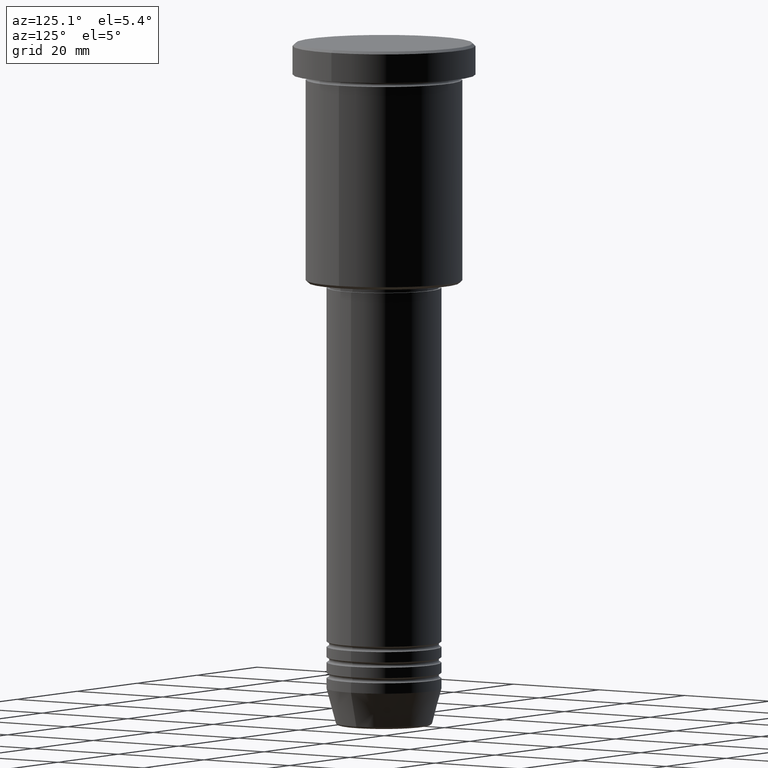
[diagram: clean part render]
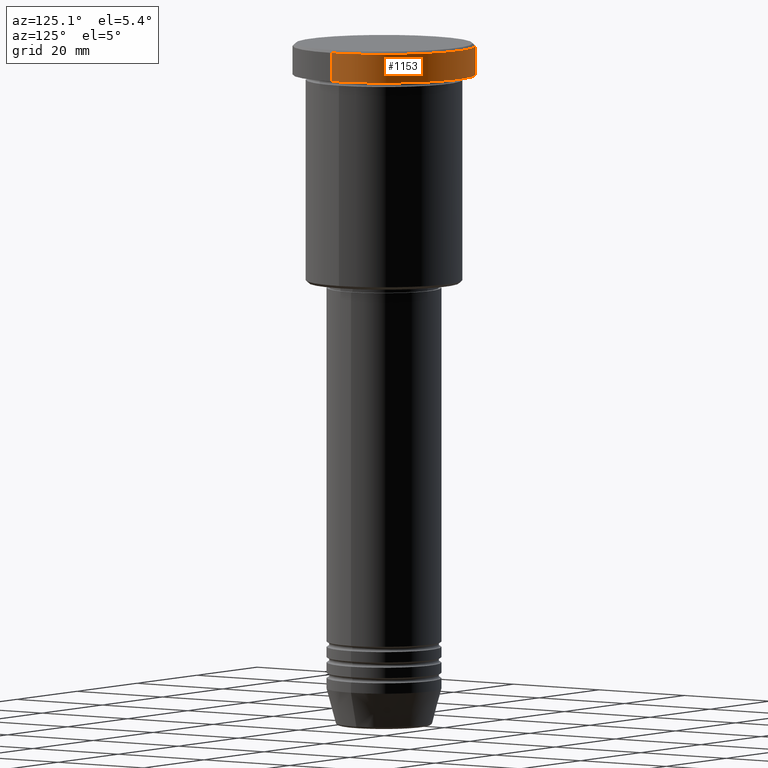
[diagram: same view with one face highlighted and labeled with its STEP entity id]
A machine part, auxiliary view. The second image highlights one B-rep face of the part: STEP entity #1153.
In plain terms, the highlighted cylindrical surface (partial cylindrical patch) has radius 17.5 mm, axis along (-0, -0, 1).
Its self-contained STEP definition (entity closure, byte-faithful):
#18 = CIRCLE ( 'NONE', #98, 17.50000000000000000 ) ;
#36 = CARTESIAN_POINT ( 'NONE',  ( 17.50000000000000000, 0.000000000000000000, -5.999999999999995559 ) ) ;
#51 = DIRECTION ( 'NONE',  ( -0.000000000000000000, -0.000000000000000000, 1.000000000000000000 ) ) ;
#53 = CARTESIAN_POINT ( 'NONE',  ( 0.000000000000000000, 0.000000000000000000, -0.5000000000000003331 ) ) ;
#57 = VERTEX_POINT ( 'NONE', #36 ) ;
#58 = DIRECTION ( 'NONE',  ( -0.000000000000000000, -0.000000000000000000, 1.000000000000000000 ) ) ;
#74 = EDGE_LOOP ( 'NONE', ( #662, #1016, #1061, #904 ) ) ;
#98 = AXIS2_PLACEMENT_3D ( 'NONE', #53, #709, #1053 ) ;
#148 = FACE_OUTER_BOUND ( 'NONE', #74, .T. ) ;
#199 = EDGE_CURVE ( 'NONE', #57, #324, #606, .T. ) ;
#224 = CYLINDRICAL_SURFACE ( 'NONE', #489, 17.50000000000000000 ) ;
#227 = DIRECTION ( 'NONE',  ( -0.000000000000000000, -0.000000000000000000, 1.000000000000000000 ) ) ;
#257 = CARTESIAN_POINT ( 'NONE',  ( -17.50000000000000000, 2.143131898507868248E-15, -0.5000000000000003331 ) ) ;
#276 = CARTESIAN_POINT ( 'NONE',  ( -17.50000000000000000, 2.143131898507868248E-15, -5.999999999999995559 ) ) ;
#323 = CARTESIAN_POINT ( 'NONE',  ( 17.50000000000000000, 0.000000000000000000, 0.000000000000000000 ) ) ;
#324 = VERTEX_POINT ( 'NONE', #276 ) ;
#426 = DIRECTION ( 'NONE',  ( 1.000000000000000000, 0.000000000000000000, 0.000000000000000000 ) ) ;
#435 = CARTESIAN_POINT ( 'NONE',  ( 17.50000000000000000, 0.000000000000000000, -0.5000000000000003331 ) ) ;
#455 = VERTEX_POINT ( 'NONE', #435 ) ;
#489 = AXIS2_PLACEMENT_3D ( 'NONE', #962, #51, #515 ) ;
#515 = DIRECTION ( 'NONE',  ( 1.000000000000000000, 0.000000000000000000, 0.000000000000000000 ) ) ;
#517 = CARTESIAN_POINT ( 'NONE',  ( 0.000000000000000000, 0.000000000000000000, -5.999999999999995559 ) ) ;
#606 = CIRCLE ( 'NONE', #1141, 17.50000000000000000 ) ;
#611 = LINE ( 'NONE', #323, #1121 ) ;
#662 = ORIENTED_EDGE ( 'NONE', *, *, #199, .T. ) ;
#691 = EDGE_CURVE ( 'NONE', #57, #455, #611, .T. ) ;
#709 = DIRECTION ( 'NONE',  ( 0.000000000000000000, 0.000000000000000000, -1.000000000000000000 ) ) ;
#714 = EDGE_CURVE ( 'NONE', #324, #778, #788, .T. ) ;
#768 = EDGE_CURVE ( 'NONE', #778, #455, #18, .T. ) ;
#778 = VERTEX_POINT ( 'NONE', #257 ) ;
#779 = CARTESIAN_POINT ( 'NONE',  ( -17.50000000000000000, 2.143131898507868248E-15, 0.000000000000000000 ) ) ;
#788 = LINE ( 'NONE', #779, #868 ) ;
#868 = VECTOR ( 'NONE', #227, 1000.000000000000000 ) ;
#904 = ORIENTED_EDGE ( 'NONE', *, *, #691, .F. ) ;
#962 = CARTESIAN_POINT ( 'NONE',  ( 0.000000000000000000, 0.000000000000000000, 0.000000000000000000 ) ) ;
#1016 = ORIENTED_EDGE ( 'NONE', *, *, #714, .T. ) ;
#1053 = DIRECTION ( 'NONE',  ( 1.000000000000000000, 0.000000000000000000, 0.000000000000000000 ) ) ;
#1061 = ORIENTED_EDGE ( 'NONE', *, *, #768, .T. ) ;
#1121 = VECTOR ( 'NONE', #1133, 1000.000000000000000 ) ;
#1133 = DIRECTION ( 'NONE',  ( -0.000000000000000000, -0.000000000000000000, 1.000000000000000000 ) ) ;
#1141 = AXIS2_PLACEMENT_3D ( 'NONE', #517, #58, #426 ) ;
#1153 = ADVANCED_FACE ( 'NONE', ( #148 ), #224, .T. ) ;